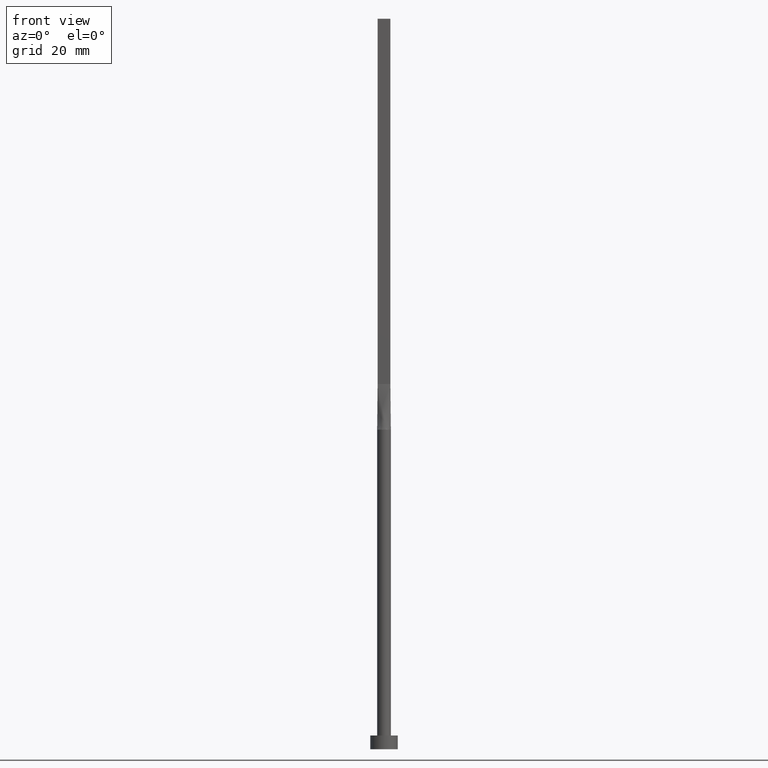
[diagram: clean part render]
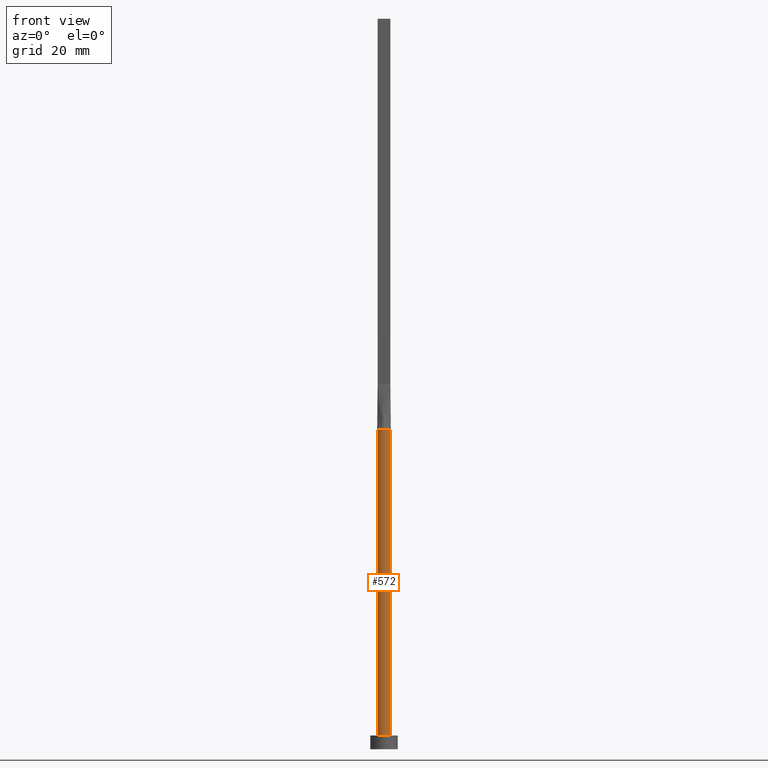
[diagram: same view with one face highlighted and labeled with its STEP entity id]
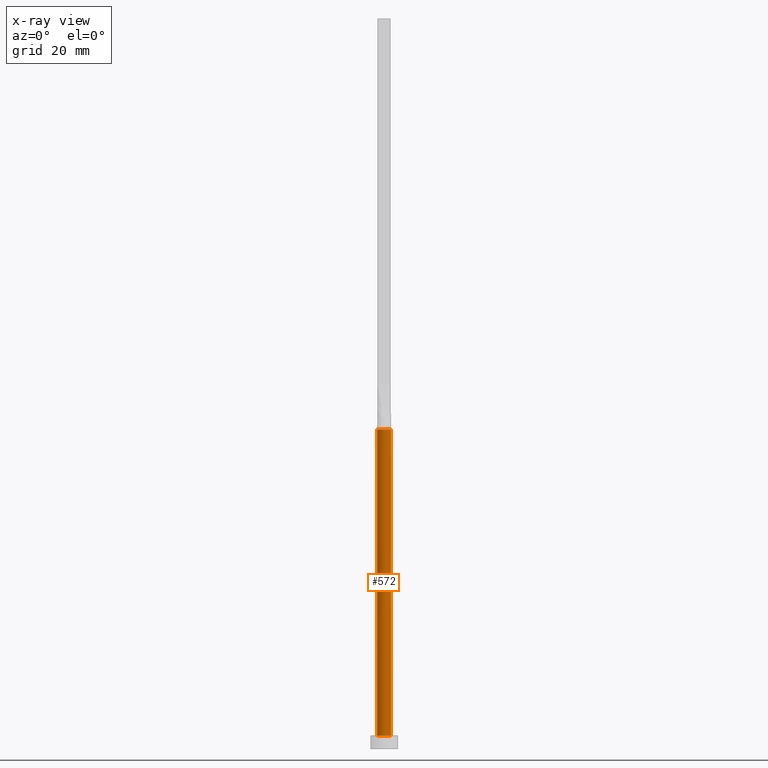
[diagram: x-ray of the same camera — body ghosted, the highlighted face saturated]
A machine part, front view. The second image highlights one B-rep face of the part: STEP entity #572.
The next image is the same camera in x-ray: the body ghosted, the highlighted face saturated — about 0% of this face is hidden behind the body in this view.
In plain terms, the highlighted cylindrical surface (edge-blend (fillet) strip) has radius 1.5 mm, axis along (-0, -0, -1).
Its self-contained STEP definition (entity closure, byte-faithful):
#3 = CIRCLE ( 'NONE', #363, 1.500000000000000222 ) ;
#12 = CARTESIAN_POINT ( 'NONE',  ( -1.499909062348296462, -1.026848616785427865E-15, 70.00000000000000000 ) ) ;
#17 = CARTESIAN_POINT ( 'NONE',  ( 0.000000000000000000, 0.000000000000000000, 70.00000000000000000 ) ) ;
#24 = DIRECTION ( 'NONE',  ( 0.000000000000000000, 0.000000000000000000, 1.000000000000000000 ) ) ;
#26 = CARTESIAN_POINT ( 'NONE',  ( -1.476780214353118348, -0.2637106662004926605, 70.00000000000000000 ) ) ;
#27 = ORIENTED_EDGE ( 'NONE', *, *, #180, .T. ) ;
#29 = DIRECTION ( 'NONE',  ( -1.000000000000000000, 0.000000000000000000, 0.000000000000000000 ) ) ;
#30 = CARTESIAN_POINT ( 'NONE',  ( 0.000000000000000000, 0.000000000000000000, 70.00000000000000000 ) ) ;
#35 = DIRECTION ( 'NONE',  ( 1.000000000000000000, 0.000000000000000000, 0.000000000000000000 ) ) ;
#61 = ORIENTED_EDGE ( 'NONE', *, *, #186, .F. ) ;
#62 = DIRECTION ( 'NONE',  ( -0.000000000000000000, -0.000000000000000000, -1.000000000000000000 ) ) ;
#87 = VECTOR ( 'NONE', #62, 1000.000000000000000 ) ;
#98 = CARTESIAN_POINT ( 'NONE',  ( 1.500000000000000222, 1.836970198721030181E-16, 70.00000000000000000 ) ) ;
#106 = CIRCLE ( 'NONE', #144, 1.500000000000000222 ) ;
#109 = CARTESIAN_POINT ( 'NONE',  ( -1.500000000000000222, 0.000000000000000000, 70.00000000000000000 ) ) ;
#115 = VERTEX_POINT ( 'NONE', #12 ) ;
#116 = CIRCLE ( 'NONE', #248, 1.500000000000000222 ) ;
#120 = EDGE_CURVE ( 'NONE', #115, #557, #334, .T. ) ;
#124 = CARTESIAN_POINT ( 'NONE',  ( 0.000000000000000000, 0.000000000000000000, 3.000000000000000000 ) ) ;
#144 = AXIS2_PLACEMENT_3D ( 'NONE', #17, #282, #503 ) ;
#147 = ORIENTED_EDGE ( 'NONE', *, *, #295, .F. ) ;
#179 = VERTEX_POINT ( 'NONE', #258 ) ;
#180 = EDGE_CURVE ( 'NONE', #557, #383, #3, .T. ) ;
#185 = VERTEX_POINT ( 'NONE', #26 ) ;
#186 = EDGE_CURVE ( 'NONE', #115, #185, #466, .T. ) ;
#194 = ORIENTED_EDGE ( 'NONE', *, *, #120, .T. ) ;
#215 = DIRECTION ( 'NONE',  ( 1.000000000000000000, 0.000000000000000000, 0.000000000000000000 ) ) ;
#220 = CARTESIAN_POINT ( 'NONE',  ( 0.000000000000000000, 0.000000000000000000, 70.00000000000000000 ) ) ;
#229 = ORIENTED_EDGE ( 'NONE', *, *, #487, .F. ) ;
#243 = CARTESIAN_POINT ( 'NONE',  ( 1.476789766994309527, -0.2637122300648489515, 70.00000000000000000 ) ) ;
#248 = AXIS2_PLACEMENT_3D ( 'NONE', #220, #24, #35 ) ;
#253 = CARTESIAN_POINT ( 'NONE',  ( -1.500000000000000222, 0.000000000000000000, 3.000000000000000000 ) ) ;
#258 = CARTESIAN_POINT ( 'NONE',  ( 1.499909062348296462, 3.515891419768138559E-16, 70.00000000000000000 ) ) ;
#282 = DIRECTION ( 'NONE',  ( 0.000000000000000000, 0.000000000000000000, 1.000000000000000000 ) ) ;
#295 = EDGE_CURVE ( 'NONE', #185, #501, #116, .T. ) ;
#319 = CARTESIAN_POINT ( 'NONE',  ( 1.500000000000000222, 1.836970198721030181E-16, 3.000000000000000000 ) ) ;
#332 = ORIENTED_EDGE ( 'NONE', *, *, #494, .F. ) ;
#334 = LINE ( 'NONE', #109, #87 ) ;
#339 = DIRECTION ( 'NONE',  ( -0.000000000000000000, -0.000000000000000000, -1.000000000000000000 ) ) ;
#343 = FACE_OUTER_BOUND ( 'NONE', #416, .T. ) ;
#363 = AXIS2_PLACEMENT_3D ( 'NONE', #124, #530, #215 ) ;
#378 = LINE ( 'NONE', #98, #433 ) ;
#383 = VERTEX_POINT ( 'NONE', #319 ) ;
#392 = DIRECTION ( 'NONE',  ( 0.000000000000000000, 0.000000000000000000, 1.000000000000000000 ) ) ;
#416 = EDGE_LOOP ( 'NONE', ( #229, #332, #147, #61, #194, #27 ) ) ;
#428 = CYLINDRICAL_SURFACE ( 'NONE', #480, 1.500000000000000222 ) ;
#433 = VECTOR ( 'NONE', #459, 1000.000000000000000 ) ;
#459 = DIRECTION ( 'NONE',  ( -0.000000000000000000, -0.000000000000000000, -1.000000000000000000 ) ) ;
#466 = CIRCLE ( 'NONE', #519, 1.500000000000000222 ) ;
#473 = CARTESIAN_POINT ( 'NONE',  ( 0.000000000000000000, 0.000000000000000000, 70.00000000000000000 ) ) ;
#480 = AXIS2_PLACEMENT_3D ( 'NONE', #473, #339, #29 ) ;
#487 = EDGE_CURVE ( 'NONE', #179, #383, #378, .T. ) ;
#494 = EDGE_CURVE ( 'NONE', #501, #179, #106, .T. ) ;
#501 = VERTEX_POINT ( 'NONE', #243 ) ;
#503 = DIRECTION ( 'NONE',  ( 1.000000000000000000, -7.105427357601001859E-15, 0.000000000000000000 ) ) ;
#519 = AXIS2_PLACEMENT_3D ( 'NONE', #30, #392, #566 ) ;
#530 = DIRECTION ( 'NONE',  ( 0.000000000000000000, 0.000000000000000000, 1.000000000000000000 ) ) ;
#557 = VERTEX_POINT ( 'NONE', #253 ) ;
#566 = DIRECTION ( 'NONE',  ( 1.000000000000000000, 0.000000000000000000, 0.000000000000000000 ) ) ;
#572 = ADVANCED_FACE ( 'NONE', ( #343 ), #428, .T. ) ;